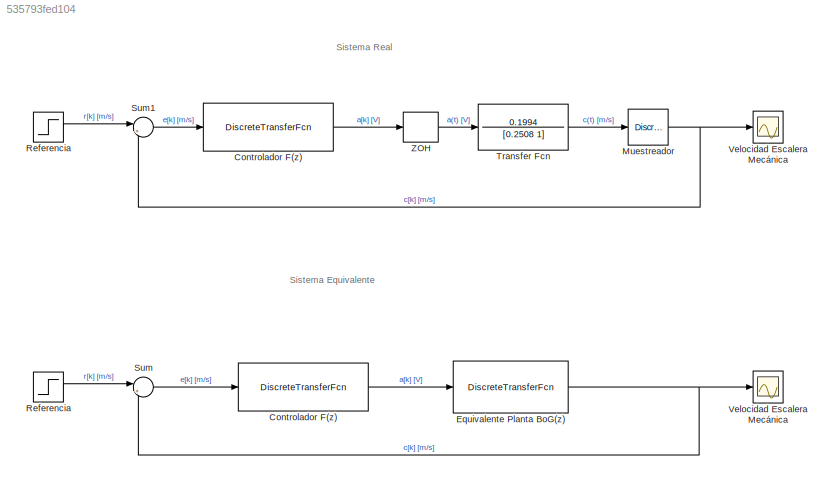
MODEL slx_535793fed104
KIND model
CONFIG AbsTol = auto
CONFIG EnableMultiTasking = off
CONFIG FixedStep = auto
CONFIG MaxStep = auto
CONFIG MinStep = auto
CONFIG RelTol = 1e-3
CONFIG SampleTimeConstraint = Unconstrained
CONFIG SolverName = VariableStepAuto
CONFIG StartTime = 0.0
CONFIG StopTime = 5
BLOCK [DiscreteTransferFcn] Controlador F(z)
  Denominator = [1 -0.8948 -0.102]
  InputPortMap = u0
  NameLocation = top
  Numerator = [3.929 -3.417 0]
BLOCK [DiscreteTransferFcn] Controlador F(z) 
  Denominator = [1 -0.8948 -0.102]
  InputPortMap = u0
  NameLocation = top
  Numerator = [3.929 -3.417 0]
BLOCK [DiscreteTransferFcn] Equivalente Planta BoG(z)
  Denominator = [1 -0.8698 0]
  InputPortMap = u0
  NameLocation = top
  Numerator = 0.02596
BLOCK [DiscreteTransferFcn] Muestreador
  Denominator = [1 0]
  InputPortMap = u0
  NameLocation = top
BLOCK [Step] Referencia
  SampleTime = 0.035
  Time = 0
BLOCK [Step] Referencia 
  SampleTime = 0.035
  Time = 0
BLOCK [Sum] Sum
  Inputs = |+-
BLOCK [Sum] Sum1
  Inputs = |+-
BLOCK [TransferFcn] Transfer Fcn
  Denominator = [0.2508 1]
  Numerator = 0.1994
BLOCK [Scope] Velocidad Escalera Mecánica
  Floating = off
  NumInputPorts = 1
  ScopeSpecificationString = Simulink.scopes.TimeScopeBlockCfg('CurrentConfiguration', extmgr.ConfigurationSet(extmgr.Configuration('Core','General UI',true),extmgr.Configuration('Core','Source UI',true),extmgr.Configuration('Sources','WiredSimulink',true),extmgr.Configuration('Visuals','Time Domain',true,'SerializedDisplays',{struct('MinYLimReal','-0.1212','MaxYLimReal','1.09081','YLabelReal','','MinYLimMag','0.00000','MaxYL...<+1446ch>
BLOCK [Scope] Velocidad Escalera Mecánica 
  Floating = off
  NumInputPorts = 1
  ScopeSpecificationString = Simulink.scopes.TimeScopeBlockCfg('CurrentConfiguration', extmgr.ConfigurationSet(extmgr.Configuration('Core','General UI',true),extmgr.Configuration('Core','Source UI',true),extmgr.Configuration('Sources','WiredSimulink',true,'DataLoggingVariableName','ScopeData1'),extmgr.Configuration('Visuals','Time Domain',true,'SerializedDisplays',{struct('MinYLimReal','-0.1212','MaxYLimReal','1.09081','YLabe...<+1504ch>
BLOCK [ZeroOrderHold] ZOH
  NameLocation = top
  SampleTime = 0.035
ANNOTATION (root): Sistema Equivalente
ANNOTATION (root): Sistema Real
LINE Controlador F(z) :1 -> ZOH:1
LINE Controlador F(z):1 -> Equivalente Planta BoG(z):1
NET Equivalente Planta BoG(z):1 -> Sum:2, Velocidad Escalera Mecánica:1
NET Muestreador:1 -> Sum1:2, Velocidad Escalera Mecánica :1
LINE Referencia :1 -> Sum1:1
LINE Referencia:1 -> Sum:1
LINE Sum1:1 -> Controlador F(z) :1
LINE Sum:1 -> Controlador F(z):1
LINE Transfer Fcn:1 -> Muestreador:1
LINE ZOH:1 -> Transfer Fcn:1
note: NET lines group one-source signal fan-out (src -> all destinations, sorted); 1:1 wires keep LINE
